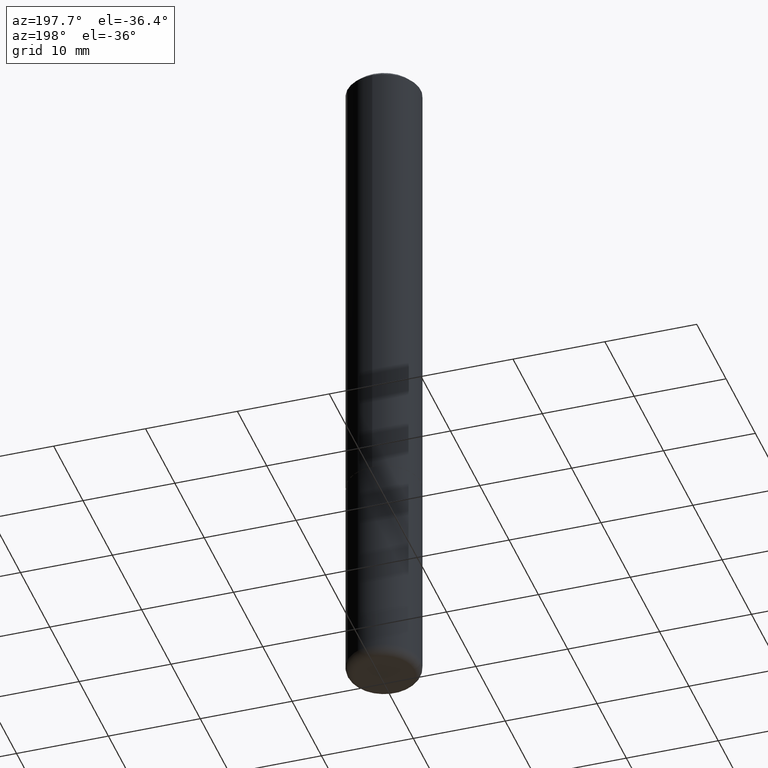
[diagram: clean part render]
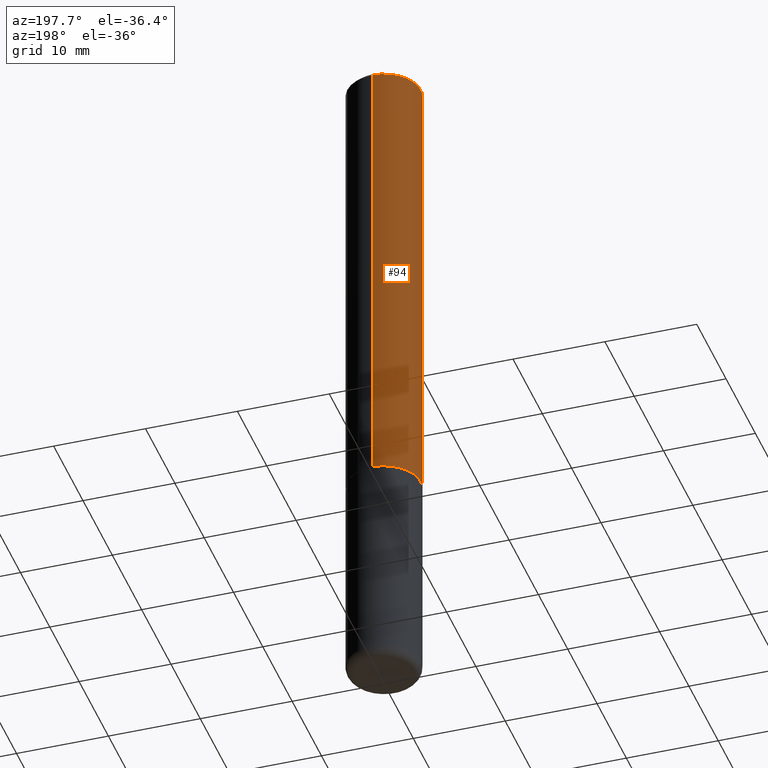
[diagram: same view with one face highlighted and labeled with its STEP entity id]
A machine part, auxiliary view. The second image highlights one B-rep face of the part: STEP entity #94.
In plain terms, the highlighted cylindrical surface (partial cylindrical patch) has radius 4.0005 mm, axis along (-0, 0, 1).
Its self-contained STEP definition (entity closure, byte-faithful):
#11 = LINE ( 'NONE', #173, #291 ) ;
#12 = VERTEX_POINT ( 'NONE', #414 ) ;
#41 = EDGE_LOOP ( 'NONE', ( #289, #231, #74, #318 ) ) ;
#44 = DIRECTION ( 'NONE',  ( -2.444729828315544280E-29, 3.492539597212409932E-15, 1.000000000000000000 ) ) ;
#49 = CIRCLE ( 'NONE', #159, 0.1575000000000002232 ) ;
#50 = CARTESIAN_POINT ( 'NONE',  ( 1.119104808822183439E-15, 0.1574999999999932287, -2.006899999999999906 ) ) ;
#72 = CARTESIAN_POINT ( 'NONE',  ( 1.099816621735587480E-15, 0.1574999999999999456, -0.02000000000000058328 ) ) ;
#74 = ORIENTED_EDGE ( 'NONE', *, *, #248, .T. ) ;
#76 = DIRECTION ( 'NONE',  ( -6.982962677686265922E-15, -1.000000000000000000, 3.469013325287948560E-15 ) ) ;
#84 = EDGE_CURVE ( 'NONE', #204, #153, #148, .T. ) ;
#94 = ADVANCED_FACE ( 'NONE', ( #346 ), #180, .T. ) ;
#119 = VECTOR ( 'NONE', #271, 39.37007874015748143 ) ;
#129 = LINE ( 'NONE', #237, #119 ) ;
#143 = CARTESIAN_POINT ( 'NONE',  ( 4.889459656631096617E-31, -6.985079194424830218E-17, -0.02000000000000003511 ) ) ;
#145 = CARTESIAN_POINT ( 'NONE',  ( 0.000000000000000000, 0.000000000000000000, 0.000000000000000000 ) ) ;
#148 = CIRCLE ( 'NONE', #275, 0.1575000000000000289 ) ;
#153 = VERTEX_POINT ( 'NONE', #232 ) ;
#156 = EDGE_CURVE ( 'NONE', #211, #204, #11, .T. ) ;
#159 = AXIS2_PLACEMENT_3D ( 'NONE', #298, #44, #76 ) ;
#173 = CARTESIAN_POINT ( 'NONE',  ( 1.119104808822158392E-15, 0.1575000000000001399, -5.500749865609550376E-16 ) ) ;
#180 = CYLINDRICAL_SURFACE ( 'NONE', #284, 0.1575000000000001399 ) ;
#204 = VERTEX_POINT ( 'NONE', #72 ) ;
#211 = VERTEX_POINT ( 'NONE', #50 ) ;
#217 = DIRECTION ( 'NONE',  ( -6.982962677686265133E-15, -1.000000000000000000, 3.492539597212409932E-15 ) ) ;
#231 = ORIENTED_EDGE ( 'NONE', *, *, #412, .T. ) ;
#232 = CARTESIAN_POINT ( 'NONE',  ( -1.080528434649015779E-15, -0.1575000000000000844, -0.01999999999999948347 ) ) ;
#237 = CARTESIAN_POINT ( 'NONE',  ( -1.099816621735587677E-15, -0.1575000000000001399, 5.500749865609550376E-16 ) ) ;
#248 = EDGE_CURVE ( 'NONE', #12, #153, #129, .T. ) ;
#271 = DIRECTION ( 'NONE',  ( -2.444729828315544280E-29, 3.492539597212410327E-15, 1.000000000000000000 ) ) ;
#275 = AXIS2_PLACEMENT_3D ( 'NONE', #143, #311, #376 ) ;
#284 = AXIS2_PLACEMENT_3D ( 'NONE', #145, #379, #217 ) ;
#289 = ORIENTED_EDGE ( 'NONE', *, *, #156, .F. ) ;
#291 = VECTOR ( 'NONE', #392, 39.37007874015748143 ) ;
#298 = CARTESIAN_POINT ( 'NONE',  ( 4.906328292446464760E-29, -7.009177717645583542E-15, -2.006899999999999462 ) ) ;
#311 = DIRECTION ( 'NONE',  ( -2.444729828315544280E-29, 3.492539597212409932E-15, 1.000000000000000000 ) ) ;
#318 = ORIENTED_EDGE ( 'NONE', *, *, #84, .F. ) ;
#346 = FACE_OUTER_BOUND ( 'NONE', #41, .T. ) ;
#376 = DIRECTION ( 'NONE',  ( -6.982962677686264344E-15, -1.000000000000000000, 3.496114991891764787E-15 ) ) ;
#379 = DIRECTION ( 'NONE',  ( -2.444729828315544280E-29, 3.492539597212409932E-15, 1.000000000000000000 ) ) ;
#392 = DIRECTION ( 'NONE',  ( -2.444729828315544280E-29, 3.492539597212410327E-15, 1.000000000000000000 ) ) ;
#412 = EDGE_CURVE ( 'NONE', #211, #12, #49, .T. ) ;
#414 = CARTESIAN_POINT ( 'NONE',  ( -1.099816621735539360E-15, -0.1575000000000072453, -2.006899999999999018 ) ) ;